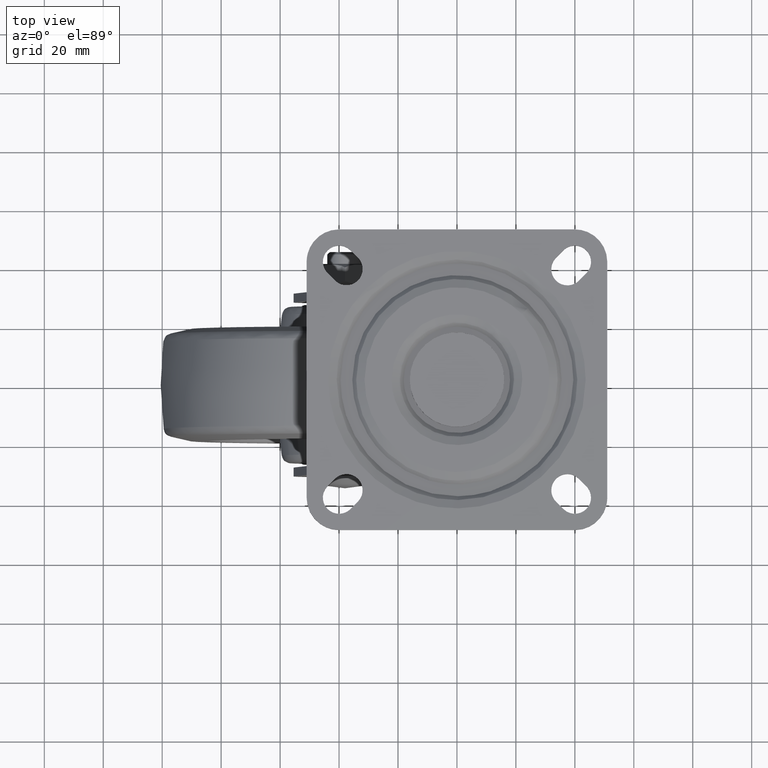
[diagram: clean part render]
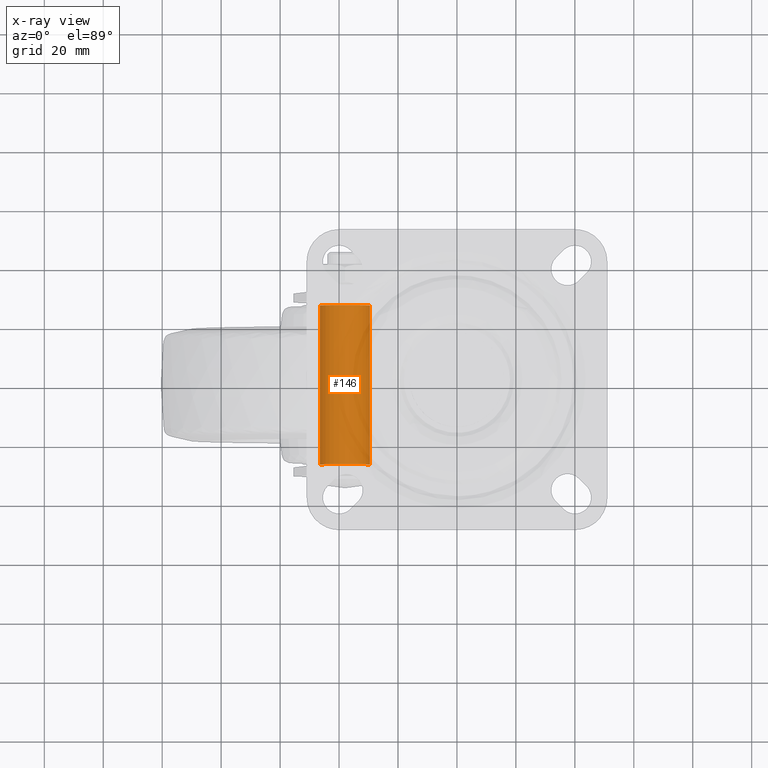
[diagram: x-ray — body ghosted, one internal face saturated and labeled with its STEP entity id]
A machine part, top view, then the same camera in x-ray: the body is ghosted and one INTERNAL B-rep face — a face not visible from any outside direction — is saturated and labeled: STEP entity #146.
In plain terms, the highlighted face is a freeform B-spline surface patch.
Its self-contained STEP definition (entity closure, byte-faithful):
#44=CARTESIAN_POINT('',(-29.559444025908721,28.350000000000009,-106.503290994582530));
#45=CARTESIAN_POINT('',(-29.530730268686728,28.350000000000005,-106.261725193422790));
#46=CARTESIAN_POINT('',(-29.515879213414010,28.350000000000009,-106.018912586046300));
#47=CARTESIAN_POINT('',(-28.996966627367719,28.350000000000009,-97.534766799460314));
#48=CARTESIAN_POINT('',(-37.481112413953710,28.350000000000009,-97.015854213414016));
#49=CARTESIAN_POINT('',(-45.965258200539708,28.350000000000009,-96.496941627367718));
#50=CARTESIAN_POINT('',(-46.484170786585992,28.350000000000009,-104.981087413953700));
#51=CARTESIAN_POINT('',(-29.559444025908721,-28.383750000000003,-106.503290994582530));
#52=CARTESIAN_POINT('',(-29.530730268686728,-28.383749999999996,-106.261725193422790));
#53=CARTESIAN_POINT('',(-29.515879213414010,-28.383749999999999,-106.018912586046300));
#54=CARTESIAN_POINT('',(-28.996966627367719,-28.383749999999999,-97.534766799460314));
#55=CARTESIAN_POINT('',(-37.481112413953710,-28.383749999999999,-97.015854213414016));
#56=CARTESIAN_POINT('',(-45.965258200539708,-28.383749999999999,-96.496941627367718));
#57=CARTESIAN_POINT('',(-46.484170786585992,-28.383749999999999,-104.981087413953700));
#65=(BOUNDED_SURFACE()B_SPLINE_SURFACE(2,1,((#44,#51),(#45,#52),(#46,#53),(#47,#54),(#48,#55),(#49,#56),(#50,#57)),.UNSPECIFIED.,.F.,.F.,.U.)B_SPLINE_SURFACE_WITH_KNOTS((3,2,2,3),(2,2),(0.0,0.563330444827418,14.646591565512839,28.729852686198271),(0.0,56.733750000000022),.UNSPECIFIED.)GEOMETRIC_REPRESENTATION_ITEM()RATIONAL_B_SPLINE_SURFACE(((0.977505800795127,0.977505800795127),(0.988284271247462,0.988284271247462),(1.0,1.0),(0.707106781186548,0.707106781186548),(1.0,1.0),(0.707106781186548,0.707106781186548),(1.0,1.0)))REPRESENTATION_ITEM('')SURFACE());
#66=CARTESIAN_POINT('',(-29.559444025938561,-27.0,-106.503290994833510));
#67=VERTEX_POINT('',#66);
#68=CARTESIAN_POINT('',(-38.000025000000001,-27.0,-96.999999999999872));
#69=VERTEX_POINT('',#68);
#70=CARTESIAN_POINT('',(-29.559444025938564,-27.000000000000004,-106.503290994833480));
#71=CARTESIAN_POINT('',(-29.500024999999884,-27.0,-106.003405017294940));
#72=CARTESIAN_POINT('',(-29.500024999999880,-27.0,-105.500000000000000));
#73=CARTESIAN_POINT('',(-29.500024999999884,-27.000000000000011,-96.999999999999886));
#74=CARTESIAN_POINT('',(-38.000025000000001,-27.0,-96.999999999999872));
#82=(BOUNDED_CURVE()B_SPLINE_CURVE(2,(#70,#71,#72,#73,#74),.UNSPECIFIED.,.F.,.U.)B_SPLINE_CURVE_WITH_KNOTS((3,2,3),(0.229562473505591,0.250000000000000,0.500000000000000),.UNSPECIFIED.)CURVE()GEOMETRIC_REPRESENTATION_ITEM()RATIONAL_B_SPLINE_CURVE((0.956026754168181,0.976055948321869,1.0,0.707106781186548,1.0))REPRESENTATION_ITEM(''));
#83=EDGE_CURVE('',#67,#69,#82,.T.);
#84=ORIENTED_EDGE('',*,*,#83,.T.);
#85=CARTESIAN_POINT('',(-46.484170786554557,-27.0,-104.981087413439700));
#86=VERTEX_POINT('',#85);
#87=CARTESIAN_POINT('',(-38.000025000000001,-27.0,-96.999999999999872));
#88=CARTESIAN_POINT('',(-45.996026567727874,-27.000000000000007,-96.999999999999901));
#89=CARTESIAN_POINT('',(-46.484170786554557,-27.0,-104.981087413439740));
#97=(BOUNDED_CURVE()B_SPLINE_CURVE(2,(#87,#88,#89),.UNSPECIFIED.,.F.,.U.)B_SPLINE_CURVE_WITH_KNOTS((3,3),(0.500000000000000,0.739332962221062),.UNSPECIFIED.)CURVE()GEOMETRIC_REPRESENTATION_ITEM()RATIONAL_B_SPLINE_CURVE((1.0,0.719603993307659,0.976072041628395))REPRESENTATION_ITEM(''));
#98=EDGE_CURVE('',#69,#86,#97,.T.);
#99=ORIENTED_EDGE('',*,*,#98,.T.);
#100=CARTESIAN_POINT('',(-46.484170786554557,27.0,-104.981087413439700));
#101=VERTEX_POINT('',#100);
#102=CARTESIAN_POINT('',(-46.484170786554557,27.0,-104.981087413439700));
#103=CARTESIAN_POINT('',(-46.484170786554557,-27.0,-104.981087413439700));
#104=QUASI_UNIFORM_CURVE('',1,(#102,#103),.UNSPECIFIED.,.F.,.U.);
#105=EDGE_CURVE('',#101,#86,#104,.T.);
#106=ORIENTED_EDGE('',*,*,#105,.F.);
#107=CARTESIAN_POINT('',(-38.000025000000001,27.0,-96.999999999999872));
#108=VERTEX_POINT('',#107);
#109=CARTESIAN_POINT('',(-38.000025000000001,27.0,-96.999999999999872));
#110=CARTESIAN_POINT('',(-45.996026567727874,27.000000000000007,-96.999999999999901));
#111=CARTESIAN_POINT('',(-46.484170786554557,27.0,-104.981087413439740));
#119=(BOUNDED_CURVE()B_SPLINE_CURVE(2,(#109,#110,#111),.UNSPECIFIED.,.F.,.U.)B_SPLINE_CURVE_WITH_KNOTS((3,3),(0.500000000000000,0.739332962221062),.UNSPECIFIED.)CURVE()GEOMETRIC_REPRESENTATION_ITEM()RATIONAL_B_SPLINE_CURVE((1.0,0.719603993307659,0.976072041628395))REPRESENTATION_ITEM(''));
#120=EDGE_CURVE('',#108,#101,#119,.T.);
#121=ORIENTED_EDGE('',*,*,#120,.F.);
#122=CARTESIAN_POINT('',(-29.559444025938561,27.0,-106.503290994833510));
#123=VERTEX_POINT('',#122);
#124=CARTESIAN_POINT('',(-29.559444025938557,27.000000000000004,-106.503290994833490));
#125=CARTESIAN_POINT('',(-29.500024999999887,27.000000000000004,-106.003405017294940));
#126=CARTESIAN_POINT('',(-29.500024999999880,27.0,-105.500000000000000));
#127=CARTESIAN_POINT('',(-29.500024999999884,27.000000000000011,-96.999999999999886));
#128=CARTESIAN_POINT('',(-38.000025000000001,27.0,-96.999999999999872));
#136=(BOUNDED_CURVE()B_SPLINE_CURVE(2,(#124,#125,#126,#127,#128),.UNSPECIFIED.,.F.,.U.)B_SPLINE_CURVE_WITH_KNOTS((3,2,3),(0.229562473505591,0.250000000000000,0.500000000000000),.UNSPECIFIED.)CURVE()GEOMETRIC_REPRESENTATION_ITEM()RATIONAL_B_SPLINE_CURVE((0.956026754168181,0.976055948321869,1.0,0.707106781186548,1.0))REPRESENTATION_ITEM(''));
#137=EDGE_CURVE('',#123,#108,#136,.T.);
#138=ORIENTED_EDGE('',*,*,#137,.F.);
#139=CARTESIAN_POINT('',(-29.559444025938561,27.0,-106.503290994833510));
#140=CARTESIAN_POINT('',(-29.559444025938561,-27.0,-106.503290994833510));
#141=QUASI_UNIFORM_CURVE('',1,(#139,#140),.UNSPECIFIED.,.F.,.U.);
#142=EDGE_CURVE('',#123,#67,#141,.T.);
#143=ORIENTED_EDGE('',*,*,#142,.T.);
#144=EDGE_LOOP('',(#84,#99,#106,#121,#138,#143));
#145=FACE_OUTER_BOUND('',#144,.T.);
#146=ADVANCED_FACE('',(#145),#65,.F.);